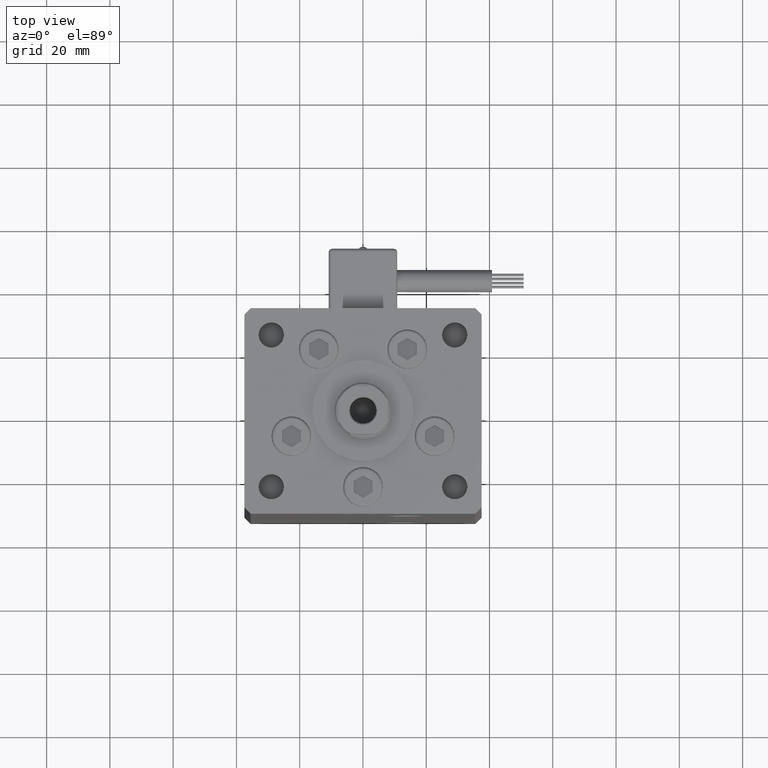
[diagram: clean part render]
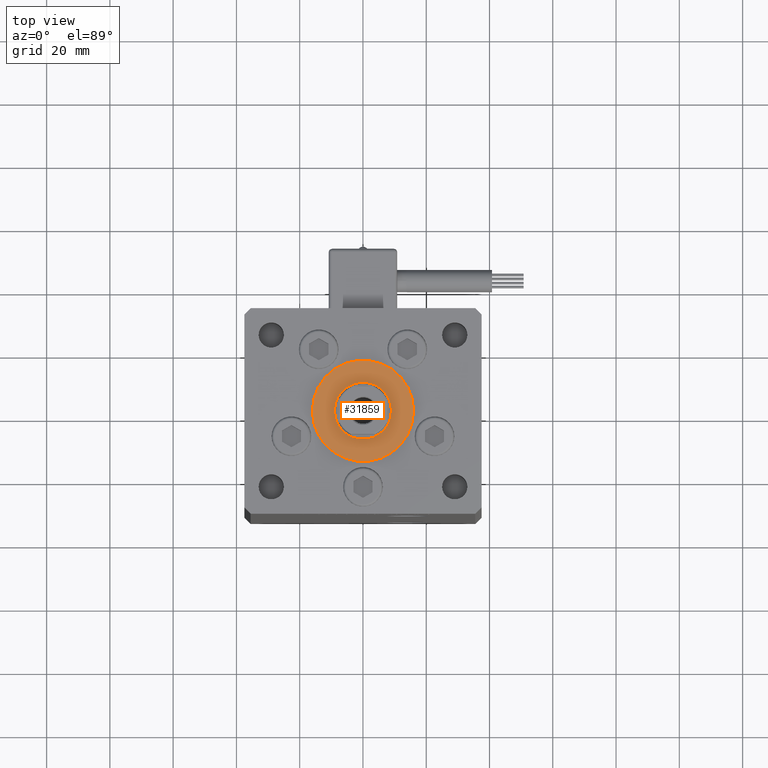
[diagram: same view with one face highlighted and labeled with its STEP entity id]
A machine part, top view. The second image highlights one B-rep face of the part: STEP entity #31859.
In plain terms, the highlighted planar face has unit normal (0, 0, 1).
Its self-contained STEP definition (entity closure, byte-faithful):
#1760 = DIRECTION ( 'NONE',  ( 1.000000000000000000, 0.000000000000000000, 0.000000000000000000 ) ) ;
#3941 = CIRCLE ( 'NONE', #53829, 16.00000000000000355 ) ;
#4024 = EDGE_CURVE ( 'NONE', #10650, #54988, #48552, .T. ) ;
#5504 = DIRECTION ( 'NONE',  ( 1.000000000000000000, 0.000000000000000000, 0.000000000000000000 ) ) ;
#5660 = CARTESIAN_POINT ( 'NONE',  ( 0.000000000000000000, -6.938893903907228378E-15, 2.000000000000000000 ) ) ;
#6068 = CARTESIAN_POINT ( 'NONE',  ( -9.000000000000000000, -5.836711784674610467E-15, 2.000000000000000000 ) ) ;
#6074 = VERTEX_POINT ( 'NONE', #43655 ) ;
#6658 = CARTESIAN_POINT ( 'NONE',  ( 0.000000000000000000, -6.938893903907228378E-15, 2.000000000000000000 ) ) ;
#8455 = AXIS2_PLACEMENT_3D ( 'NONE', #31719, #52637, #5504 ) ;
#8735 = CIRCLE ( 'NONE', #12334, 9.000000000000000000 ) ;
#10650 = VERTEX_POINT ( 'NONE', #24839 ) ;
#11134 = DIRECTION ( 'NONE',  ( 0.000000000000000000, 0.000000000000000000, 1.000000000000000000 ) ) ;
#11507 = EDGE_LOOP ( 'NONE', ( #45216, #35363 ) ) ;
#11675 = DIRECTION ( 'NONE',  ( 0.000000000000000000, 0.000000000000000000, 1.000000000000000000 ) ) ;
#12334 = AXIS2_PLACEMENT_3D ( 'NONE', #5660, #44696, #1760 ) ;
#12506 = DIRECTION ( 'NONE',  ( 1.000000000000000000, 0.000000000000000000, 0.000000000000000000 ) ) ;
#12914 = FACE_BOUND ( 'NONE', #11507, .T. ) ;
#13202 = FACE_OUTER_BOUND ( 'NONE', #35191, .T. ) ;
#15475 = EDGE_CURVE ( 'NONE', #6074, #17095, #8735, .T. ) ;
#16675 = CARTESIAN_POINT ( 'NONE',  ( 0.000000000000000000, -6.938893903907228378E-15, 2.000000000000000000 ) ) ;
#17045 = AXIS2_PLACEMENT_3D ( 'NONE', #6658, #11134, #32064 ) ;
#17095 = VERTEX_POINT ( 'NONE', #6068 ) ;
#18188 = AXIS2_PLACEMENT_3D ( 'NONE', #21000, #38026, #30207 ) ;
#20987 = ORIENTED_EDGE ( 'NONE', *, *, #32049, .T. ) ;
#21000 = CARTESIAN_POINT ( 'NONE',  ( 0.000000000000000000, -6.938893903907228378E-15, 2.000000000000000000 ) ) ;
#24485 = EDGE_CURVE ( 'NONE', #17095, #6074, #41100, .T. ) ;
#24839 = CARTESIAN_POINT ( 'NONE',  ( -16.00000000000000355, -6.938893903907228378E-15, 2.000000000000000000 ) ) ;
#30207 = DIRECTION ( 'NONE',  ( 1.000000000000000000, 0.000000000000000000, -0.000000000000000000 ) ) ;
#31719 = CARTESIAN_POINT ( 'NONE',  ( 0.000000000000000000, -6.938893903907228378E-15, 2.000000000000000000 ) ) ;
#31859 = ADVANCED_FACE ( 'NONE', ( #12914, #13202 ), #46384, .T. ) ;
#32049 = EDGE_CURVE ( 'NONE', #54988, #10650, #3941, .T. ) ;
#32064 = DIRECTION ( 'NONE',  ( 1.000000000000000000, 0.000000000000000000, 0.000000000000000000 ) ) ;
#34652 = CARTESIAN_POINT ( 'NONE',  ( 16.00000000000000355, -4.979459025271462852E-15, 2.000000000000000000 ) ) ;
#35191 = EDGE_LOOP ( 'NONE', ( #55108, #20987 ) ) ;
#35363 = ORIENTED_EDGE ( 'NONE', *, *, #24485, .F. ) ;
#38026 = DIRECTION ( 'NONE',  ( 0.000000000000000000, 0.000000000000000000, 1.000000000000000000 ) ) ;
#41100 = CIRCLE ( 'NONE', #17045, 9.000000000000000000 ) ;
#43655 = CARTESIAN_POINT ( 'NONE',  ( 9.000000000000000000, -6.938893903907228378E-15, 2.000000000000000000 ) ) ;
#44696 = DIRECTION ( 'NONE',  ( 0.000000000000000000, 0.000000000000000000, 1.000000000000000000 ) ) ;
#45216 = ORIENTED_EDGE ( 'NONE', *, *, #15475, .F. ) ;
#46384 = PLANE ( 'NONE',  #18188 ) ;
#48552 = CIRCLE ( 'NONE', #8455, 16.00000000000000355 ) ;
#52637 = DIRECTION ( 'NONE',  ( 0.000000000000000000, 0.000000000000000000, 1.000000000000000000 ) ) ;
#53829 = AXIS2_PLACEMENT_3D ( 'NONE', #16675, #11675, #12506 ) ;
#54988 = VERTEX_POINT ( 'NONE', #34652 ) ;
#55108 = ORIENTED_EDGE ( 'NONE', *, *, #4024, .T. ) ;